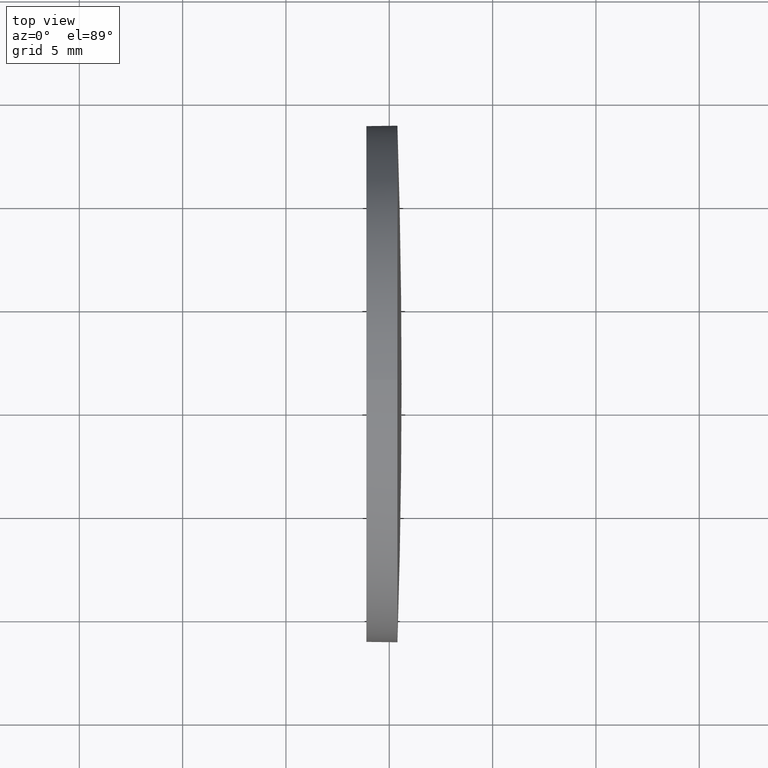
[diagram: clean part render]
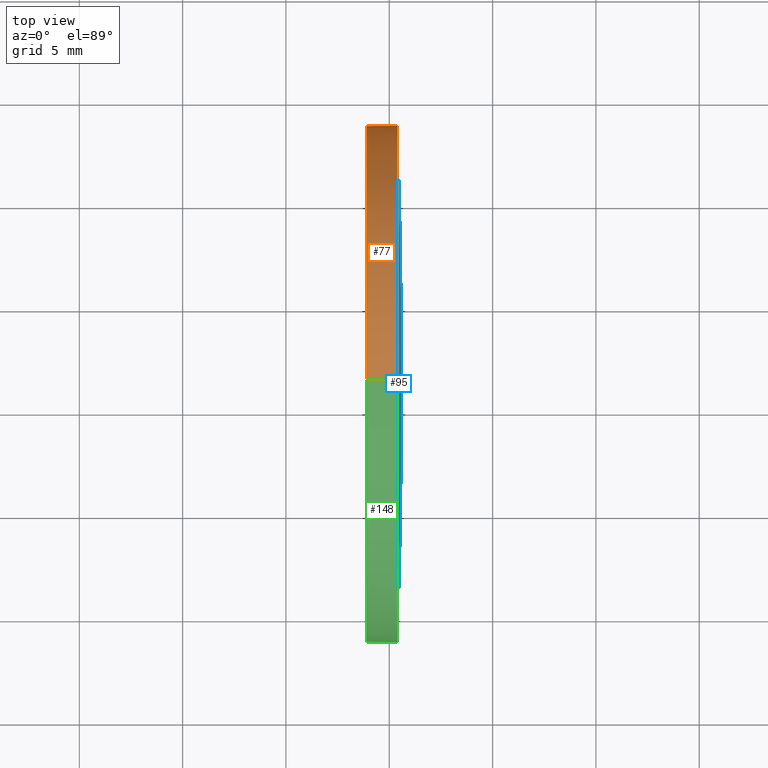
[diagram: same view with three faces highlighted in distinct colors, each labeled with its STEP entity id]
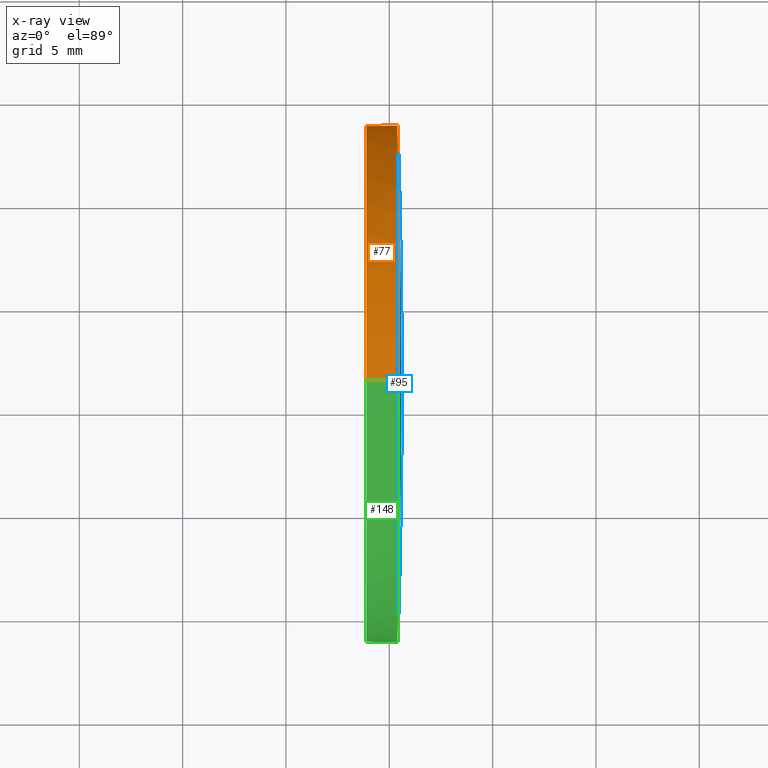
[diagram: x-ray of the same camera — body ghosted, the three highlighted faces saturated]
A machine part, top view with three faces highlighted in distinct colors.
The next image is the same camera in x-ray (body ghosted, the three faces saturated) — at least one of them is partly hidden behind the body in this view.
Their STEP definitions:

[orange] entity #77 — the highlighted cylindrical surface (partial cylindrical patch) has radius 12.5 mm, axis along (-1, -0, -0).
#1 = VERTEX_POINT ( 'NONE', #86 ) ;
#6 = CARTESIAN_POINT ( 'NONE',  ( 410.3943879828856300, 138.7827390996668800, 0.0000000000000000000 ) ) ;
#9 = CARTESIAN_POINT ( 'NONE',  ( 410.3943879828856900, 126.2827390996670800, -12.50000000000001100 ) ) ;
#12 = DIRECTION ( 'NONE',  ( 0.0000000000000000000, 0.0000000000000000000, 1.000000000000000000 ) ) ;
#13 = EDGE_CURVE ( 'NONE', #1, #160, #175, .T. ) ;
#14 = DIRECTION ( 'NONE',  ( -1.000000000000000000, -0.0000000000000000000, -0.0000000000000000000 ) ) ;
#15 = DIRECTION ( 'NONE',  ( 0.0000000000000000000, 0.0000000000000000000, 1.000000000000000000 ) ) ;
#16 = CIRCLE ( 'NONE', #171, 12.50000000000001100 ) ;
#22 = VECTOR ( 'NONE', #25, 1000.000000000000000 ) ;
#24 = ORIENTED_EDGE ( 'NONE', *, *, #121, .T. ) ;
#25 = DIRECTION ( 'NONE',  ( -1.000000000000000000, -0.0000000000000000000, -0.0000000000000000000 ) ) ;
#30 = AXIS2_PLACEMENT_3D ( 'NONE', #147, #106, #12 ) ;
#31 = EDGE_LOOP ( 'NONE', ( #174, #138, #37, #146, #24 ) ) ;
#36 = CYLINDRICAL_SURFACE ( 'NONE', #61, 12.50000000000001100 ) ;
#37 = ORIENTED_EDGE ( 'NONE', *, *, #13, .F. ) ;
#44 = VERTEX_POINT ( 'NONE', #9 ) ;
#50 = DIRECTION ( 'NONE',  ( -1.000000000000000000, -0.0000000000000000000, -0.0000000000000000000 ) ) ;
#60 = LINE ( 'NONE', #129, #114 ) ;
#61 = AXIS2_PLACEMENT_3D ( 'NONE', #181, #143, #89 ) ;
#65 = DIRECTION ( 'NONE',  ( -1.000000000000000000, -0.0000000000000000000, -0.0000000000000000000 ) ) ;
#76 = CARTESIAN_POINT ( 'NONE',  ( 410.3943879828856900, 126.2827390996670800, 12.50000000000001100 ) ) ;
#77 = ADVANCED_FACE ( 'NONE', ( #119 ), #36, .T. ) ;
#80 = EDGE_CURVE ( 'NONE', #44, #160, #60, .T. ) ;
#86 = CARTESIAN_POINT ( 'NONE',  ( 408.8943879828856900, 126.2827390996670800, 12.50000000000001100 ) ) ;
#89 = DIRECTION ( 'NONE',  ( 0.0000000000000000000, 0.0000000000000000000, 1.000000000000000000 ) ) ;
#90 = DIRECTION ( 'NONE',  ( 0.0000000000000000000, 0.0000000000000000000, 1.000000000000000000 ) ) ;
#91 = CARTESIAN_POINT ( 'NONE',  ( 404.1523567409958000, 126.2827390996670800, 12.50000000000001100 ) ) ;
#99 = LINE ( 'NONE', #91, #22 ) ;
#102 = EDGE_CURVE ( 'NONE', #166, #44, #150, .T. ) ;
#104 = CARTESIAN_POINT ( 'NONE',  ( 408.8943879828856900, 126.2827390996670800, 0.0000000000000000000 ) ) ;
#106 = DIRECTION ( 'NONE',  ( -1.000000000000000000, -0.0000000000000000000, -0.0000000000000000000 ) ) ;
#114 = VECTOR ( 'NONE', #50, 1000.000000000000000 ) ;
#117 = EDGE_CURVE ( 'NONE', #132, #1, #99, .T. ) ;
#119 = FACE_OUTER_BOUND ( 'NONE', #31, .T. ) ;
#121 = EDGE_CURVE ( 'NONE', #132, #166, #16, .T. ) ;
#126 = AXIS2_PLACEMENT_3D ( 'NONE', #104, #65, #90 ) ;
#129 = CARTESIAN_POINT ( 'NONE',  ( 404.1523567409958000, 126.2827390996670800, -12.50000000000001100 ) ) ;
#132 = VERTEX_POINT ( 'NONE', #76 ) ;
#138 = ORIENTED_EDGE ( 'NONE', *, *, #80, .T. ) ;
#143 = DIRECTION ( 'NONE',  ( -1.000000000000000000, -0.0000000000000000000, -0.0000000000000000000 ) ) ;
#146 = ORIENTED_EDGE ( 'NONE', *, *, #117, .F. ) ;
#147 = CARTESIAN_POINT ( 'NONE',  ( 410.3943879828856900, 126.2827390996670800, 0.0000000000000000000 ) ) ;
#150 = CIRCLE ( 'NONE', #30, 12.50000000000001100 ) ;
#160 = VERTEX_POINT ( 'NONE', #177 ) ;
#166 = VERTEX_POINT ( 'NONE', #6 ) ;
#171 = AXIS2_PLACEMENT_3D ( 'NONE', #186, #14, #15 ) ;
#174 = ORIENTED_EDGE ( 'NONE', *, *, #102, .T. ) ;
#175 = CIRCLE ( 'NONE', #126, 12.50000000000001100 ) ;
#177 = CARTESIAN_POINT ( 'NONE',  ( 408.8943879828856900, 126.2827390996670800, -12.50000000000001100 ) ) ;
#181 = CARTESIAN_POINT ( 'NONE',  ( 404.1523567409958000, 126.2827390996670800, 0.0000000000000000000 ) ) ;
#186 = CARTESIAN_POINT ( 'NONE',  ( 410.3943879828856900, 126.2827390996670800, 0.0000000000000000000 ) ) ;

[blue] entity #95 — the highlighted spherical surface has radius 390.725 mm.
#2 = AXIS2_PLACEMENT_3D ( 'NONE', #125, #45, #5 ) ;
#5 = DIRECTION ( 'NONE',  ( 0.0000000000000000000, 0.0000000000000000000, 1.000000000000000000 ) ) ;
#6 = CARTESIAN_POINT ( 'NONE',  ( 410.3943879828856300, 138.7827390996668800, 0.0000000000000000000 ) ) ;
#7 = CARTESIAN_POINT ( 'NONE',  ( 410.3943879828856300, 113.7827390996670000, -1.530808498934166900E-015 ) ) ;
#11 = EDGE_LOOP ( 'NONE', ( #28, #176, #83, #51 ) ) ;
#14 = DIRECTION ( 'NONE',  ( -1.000000000000000000, -0.0000000000000000000, -0.0000000000000000000 ) ) ;
#15 = DIRECTION ( 'NONE',  ( 0.0000000000000000000, 0.0000000000000000000, 1.000000000000000000 ) ) ;
#16 = CIRCLE ( 'NONE', #171, 12.50000000000001100 ) ;
#23 = CARTESIAN_POINT ( 'NONE',  ( 19.86938798288417700, 126.2827390996668100, 0.0000000000000000000 ) ) ;
#28 = ORIENTED_EDGE ( 'NONE', *, *, #62, .F. ) ;
#38 = CARTESIAN_POINT ( 'NONE',  ( 19.86938798288417700, 126.2827390996668100, 0.0000000000000000000 ) ) ;
#39 = AXIS2_PLACEMENT_3D ( 'NONE', #23, #73, #56 ) ;
#45 = DIRECTION ( 'NONE',  ( -1.000000000000000000, -0.0000000000000000000, -0.0000000000000000000 ) ) ;
#51 = ORIENTED_EDGE ( 'NONE', *, *, #164, .F. ) ;
#52 = CARTESIAN_POINT ( 'NONE',  ( 19.86938798288417700, 126.2827390996668100, 0.0000000000000000000 ) ) ;
#56 = DIRECTION ( 'NONE',  ( 1.000000000000000000, 0.0000000000000000000, 0.0000000000000000000 ) ) ;
#59 = CARTESIAN_POINT ( 'NONE',  ( 410.5943879828856800, 126.2827390996668400, 0.0000000000000000000 ) ) ;
#62 = EDGE_CURVE ( 'NONE', #130, #94, #157, .T. ) ;
#68 = DIRECTION ( 'NONE',  ( 0.0000000000000000000, 1.000000000000000000, 1.224646799147353000E-016 ) ) ;
#70 = DIRECTION ( 'NONE',  ( 0.0000000000000000000, 1.000000000000000000, 0.0000000000000000000 ) ) ;
#73 = DIRECTION ( 'NONE',  ( -0.0000000000000000000, 0.0000000000000000000, 1.000000000000000000 ) ) ;
#75 = AXIS2_PLACEMENT_3D ( 'NONE', #38, #180, #68 ) ;
#76 = CARTESIAN_POINT ( 'NONE',  ( 410.3943879828856900, 126.2827390996670800, 12.50000000000001100 ) ) ;
#82 = SPHERICAL_SURFACE ( 'NONE', #179, 390.7250000000015000 ) ;
#83 = ORIENTED_EDGE ( 'NONE', *, *, #121, .F. ) ;
#94 = VERTEX_POINT ( 'NONE', #7 ) ;
#95 = ADVANCED_FACE ( 'NONE', ( #123 ), #82, .T. ) ;
#105 = CIRCLE ( 'NONE', #39, 390.7250000000015000 ) ;
#109 = CIRCLE ( 'NONE', #2, 12.50000000000001100 ) ;
#113 = EDGE_CURVE ( 'NONE', #130, #166, #105, .T. ) ;
#121 = EDGE_CURVE ( 'NONE', #132, #166, #16, .T. ) ;
#123 = FACE_OUTER_BOUND ( 'NONE', #11, .T. ) ;
#125 = CARTESIAN_POINT ( 'NONE',  ( 410.3943879828856900, 126.2827390996670800, 0.0000000000000000000 ) ) ;
#130 = VERTEX_POINT ( 'NONE', #59 ) ;
#132 = VERTEX_POINT ( 'NONE', #76 ) ;
#140 = DIRECTION ( 'NONE',  ( -0.0000000000000000000, 0.0000000000000000000, -1.000000000000000000 ) ) ;
#157 = CIRCLE ( 'NONE', #75, 390.7250000000015600 ) ;
#164 = EDGE_CURVE ( 'NONE', #94, #132, #109, .T. ) ;
#166 = VERTEX_POINT ( 'NONE', #6 ) ;
#171 = AXIS2_PLACEMENT_3D ( 'NONE', #186, #14, #15 ) ;
#176 = ORIENTED_EDGE ( 'NONE', *, *, #113, .T. ) ;
#179 = AXIS2_PLACEMENT_3D ( 'NONE', #52, #140, #70 ) ;
#180 = DIRECTION ( 'NONE',  ( 0.0000000000000000000, 1.224646799147353200E-016, -1.000000000000000000 ) ) ;
#186 = CARTESIAN_POINT ( 'NONE',  ( 410.3943879828856900, 126.2827390996670800, 0.0000000000000000000 ) ) ;

[green] entity #148 — the highlighted cylindrical surface (partial cylindrical patch) has radius 12.5 mm, axis along (-1, -0, -0).
#1 = VERTEX_POINT ( 'NONE', #86 ) ;
#2 = AXIS2_PLACEMENT_3D ( 'NONE', #125, #45, #5 ) ;
#5 = DIRECTION ( 'NONE',  ( 0.0000000000000000000, 0.0000000000000000000, 1.000000000000000000 ) ) ;
#7 = CARTESIAN_POINT ( 'NONE',  ( 410.3943879828856300, 113.7827390996670000, -1.530808498934166900E-015 ) ) ;
#9 = CARTESIAN_POINT ( 'NONE',  ( 410.3943879828856900, 126.2827390996670800, -12.50000000000001100 ) ) ;
#22 = VECTOR ( 'NONE', #25, 1000.000000000000000 ) ;
#25 = DIRECTION ( 'NONE',  ( -1.000000000000000000, -0.0000000000000000000, -0.0000000000000000000 ) ) ;
#27 = CARTESIAN_POINT ( 'NONE',  ( 408.8943879828856900, 126.2827390996670800, 0.0000000000000000000 ) ) ;
#42 = AXIS2_PLACEMENT_3D ( 'NONE', #156, #169, #182 ) ;
#43 = CIRCLE ( 'NONE', #42, 12.50000000000001100 ) ;
#44 = VERTEX_POINT ( 'NONE', #9 ) ;
#45 = DIRECTION ( 'NONE',  ( -1.000000000000000000, -0.0000000000000000000, -0.0000000000000000000 ) ) ;
#50 = DIRECTION ( 'NONE',  ( -1.000000000000000000, -0.0000000000000000000, -0.0000000000000000000 ) ) ;
#54 = CYLINDRICAL_SURFACE ( 'NONE', #155, 12.50000000000001100 ) ;
#58 = ORIENTED_EDGE ( 'NONE', *, *, #137, .F. ) ;
#60 = LINE ( 'NONE', #129, #114 ) ;
#63 = ORIENTED_EDGE ( 'NONE', *, *, #117, .T. ) ;
#71 = ORIENTED_EDGE ( 'NONE', *, *, #80, .F. ) ;
#76 = CARTESIAN_POINT ( 'NONE',  ( 410.3943879828856900, 126.2827390996670800, 12.50000000000001100 ) ) ;
#80 = EDGE_CURVE ( 'NONE', #44, #160, #60, .T. ) ;
#86 = CARTESIAN_POINT ( 'NONE',  ( 408.8943879828856900, 126.2827390996670800, 12.50000000000001100 ) ) ;
#91 = CARTESIAN_POINT ( 'NONE',  ( 404.1523567409958000, 126.2827390996670800, 12.50000000000001100 ) ) ;
#93 = CARTESIAN_POINT ( 'NONE',  ( 404.1523567409958000, 126.2827390996670800, 0.0000000000000000000 ) ) ;
#94 = VERTEX_POINT ( 'NONE', #7 ) ;
#97 = EDGE_CURVE ( 'NONE', #44, #94, #43, .T. ) ;
#99 = LINE ( 'NONE', #91, #22 ) ;
#109 = CIRCLE ( 'NONE', #2, 12.50000000000001100 ) ;
#112 = EDGE_LOOP ( 'NONE', ( #71, #151, #120, #63, #58 ) ) ;
#114 = VECTOR ( 'NONE', #50, 1000.000000000000000 ) ;
#117 = EDGE_CURVE ( 'NONE', #132, #1, #99, .T. ) ;
#118 = CIRCLE ( 'NONE', #149, 12.50000000000001100 ) ;
#120 = ORIENTED_EDGE ( 'NONE', *, *, #164, .T. ) ;
#125 = CARTESIAN_POINT ( 'NONE',  ( 410.3943879828856900, 126.2827390996670800, 0.0000000000000000000 ) ) ;
#129 = CARTESIAN_POINT ( 'NONE',  ( 404.1523567409958000, 126.2827390996670800, -12.50000000000001100 ) ) ;
#132 = VERTEX_POINT ( 'NONE', #76 ) ;
#133 = DIRECTION ( 'NONE',  ( -1.000000000000000000, -0.0000000000000000000, -0.0000000000000000000 ) ) ;
#134 = DIRECTION ( 'NONE',  ( 0.0000000000000000000, 0.0000000000000000000, 1.000000000000000000 ) ) ;
#137 = EDGE_CURVE ( 'NONE', #160, #1, #118, .T. ) ;
#148 = ADVANCED_FACE ( 'NONE', ( #161 ), #54, .T. ) ;
#149 = AXIS2_PLACEMENT_3D ( 'NONE', #27, #133, #134 ) ;
#151 = ORIENTED_EDGE ( 'NONE', *, *, #97, .T. ) ;
#155 = AXIS2_PLACEMENT_3D ( 'NONE', #93, #185, #173 ) ;
#156 = CARTESIAN_POINT ( 'NONE',  ( 410.3943879828856900, 126.2827390996670800, 0.0000000000000000000 ) ) ;
#160 = VERTEX_POINT ( 'NONE', #177 ) ;
#161 = FACE_OUTER_BOUND ( 'NONE', #112, .T. ) ;
#164 = EDGE_CURVE ( 'NONE', #94, #132, #109, .T. ) ;
#169 = DIRECTION ( 'NONE',  ( -1.000000000000000000, -0.0000000000000000000, -0.0000000000000000000 ) ) ;
#173 = DIRECTION ( 'NONE',  ( 0.0000000000000000000, 0.0000000000000000000, 1.000000000000000000 ) ) ;
#177 = CARTESIAN_POINT ( 'NONE',  ( 408.8943879828856900, 126.2827390996670800, -12.50000000000001100 ) ) ;
#182 = DIRECTION ( 'NONE',  ( 0.0000000000000000000, 0.0000000000000000000, 1.000000000000000000 ) ) ;
#185 = DIRECTION ( 'NONE',  ( -1.000000000000000000, -0.0000000000000000000, -0.0000000000000000000 ) ) ;